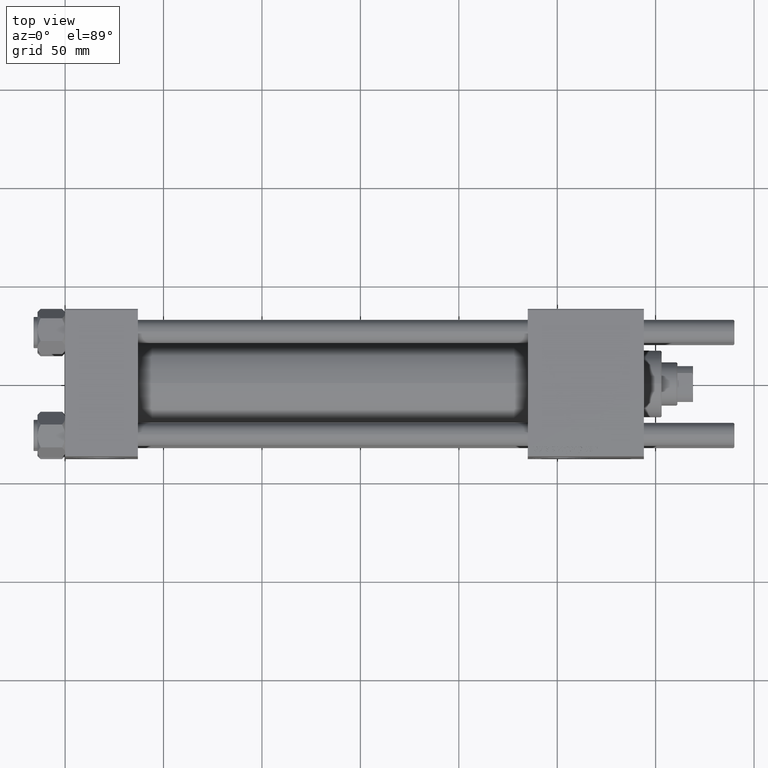
[diagram: clean part render]
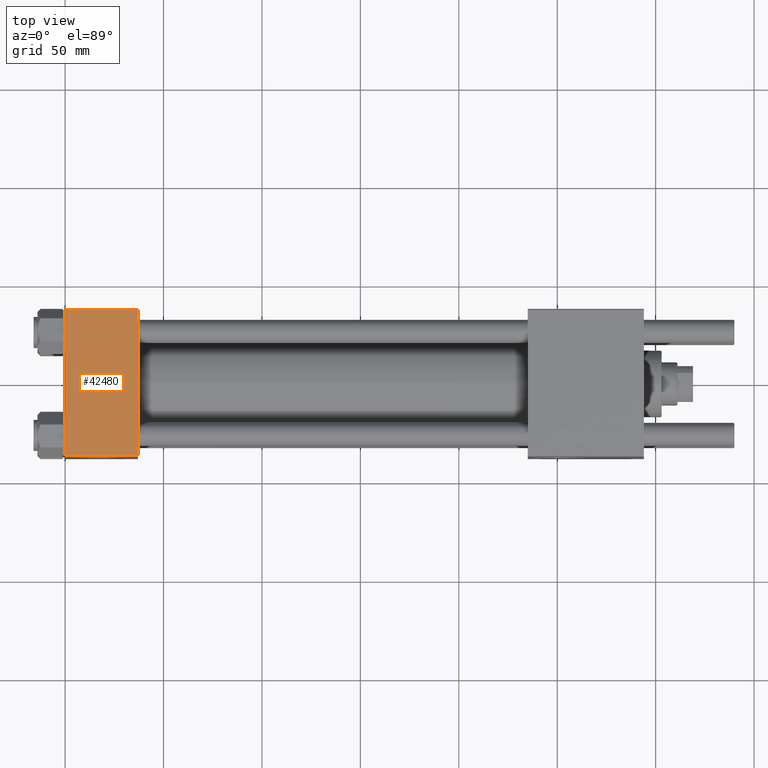
[diagram: same view with one face highlighted and labeled with its STEP entity id]
A machine part, top view. The second image highlights one B-rep face of the part: STEP entity #42480.
In plain terms, the highlighted planar face has unit normal (0, 0, -1).
Its self-contained STEP definition (entity closure, byte-faithful):
#637 = ORIENTED_EDGE ( 'NONE', *, *, #34769, .F. ) ;
#1642 = CARTESIAN_POINT ( 'NONE',  ( 0.000000000000000000, 37.49999999999999289, 37.50000000000000000 ) ) ;
#3427 = VECTOR ( 'NONE', #45007, 1000.000000000000000 ) ;
#3889 = PLANE ( 'NONE',  #54912 ) ;
#4248 = VECTOR ( 'NONE', #6762, 1000.000000000000000 ) ;
#5935 = DIRECTION ( 'NONE',  ( 0.000000000000000000, -1.000000000000000000, -9.251858538542971581E-17 ) ) ;
#6762 = DIRECTION ( 'NONE',  ( 0.000000000000000000, -1.000000000000000000, -9.251858538542971581E-17 ) ) ;
#7287 = VERTEX_POINT ( 'NONE', #48064 ) ;
#7760 = VERTEX_POINT ( 'NONE', #52543 ) ;
#11102 = LINE ( 'NONE', #1642, #17111 ) ;
#12179 = VERTEX_POINT ( 'NONE', #51147 ) ;
#12301 = VERTEX_POINT ( 'NONE', #23485 ) ;
#14294 = CARTESIAN_POINT ( 'NONE',  ( 0.000000000000000000, 36.99999999999999289, 37.50000000000000000 ) ) ;
#15146 = ORIENTED_EDGE ( 'NONE', *, *, #33833, .T. ) ;
#15180 = LINE ( 'NONE', #20336, #31760 ) ;
#17111 = VECTOR ( 'NONE', #5935, 1000.000000000000000 ) ;
#18938 = ORIENTED_EDGE ( 'NONE', *, *, #36655, .T. ) ;
#19485 = DIRECTION ( 'NONE',  ( 1.000000000000000000, 0.000000000000000000, 0.000000000000000000 ) ) ;
#20336 = CARTESIAN_POINT ( 'NONE',  ( 37.00000000000000000, -37.00000000000000711, 37.49999999999999289 ) ) ;
#23485 = CARTESIAN_POINT ( 'NONE',  ( 0.000000000000000000, 36.99999999999999289, 37.50000000000000000 ) ) ;
#25967 = CARTESIAN_POINT ( 'NONE',  ( 37.00000000000000000, 37.49999999999999289, 37.50000000000000000 ) ) ;
#26532 = DIRECTION ( 'NONE',  ( 0.000000000000000000, 9.251858538542971581E-17, -1.000000000000000000 ) ) ;
#28849 = CARTESIAN_POINT ( 'NONE',  ( 37.00000000000000000, 37.49999999999999289, 37.50000000000000000 ) ) ;
#30112 = ORIENTED_EDGE ( 'NONE', *, *, #36928, .T. ) ;
#31760 = VECTOR ( 'NONE', #19485, 1000.000000000000000 ) ;
#33833 = EDGE_CURVE ( 'NONE', #7287, #12301, #53373, .T. ) ;
#34769 = EDGE_CURVE ( 'NONE', #7287, #12179, #50997, .T. ) ;
#36655 = EDGE_CURVE ( 'NONE', #7760, #12179, #15180, .T. ) ;
#36928 = EDGE_CURVE ( 'NONE', #12301, #7760, #11102, .T. ) ;
#42480 = ADVANCED_FACE ( 'NONE', ( #43223 ), #3889, .F. ) ;
#43223 = FACE_OUTER_BOUND ( 'NONE', #45026, .T. ) ;
#43788 = DIRECTION ( 'NONE',  ( 0.000000000000000000, 1.000000000000000000, 9.251858538542971581E-17 ) ) ;
#45007 = DIRECTION ( 'NONE',  ( -1.000000000000000000, 0.000000000000000000, 0.000000000000000000 ) ) ;
#45026 = EDGE_LOOP ( 'NONE', ( #30112, #18938, #637, #15146 ) ) ;
#48064 = CARTESIAN_POINT ( 'NONE',  ( 37.00000000000000000, 36.99999999999999289, 37.50000000000000000 ) ) ;
#50997 = LINE ( 'NONE', #28849, #4248 ) ;
#51147 = CARTESIAN_POINT ( 'NONE',  ( 37.00000000000000000, -37.00000000000000711, 37.49999999999999289 ) ) ;
#52543 = CARTESIAN_POINT ( 'NONE',  ( 0.000000000000000000, -37.00000000000000711, 37.49999999999999289 ) ) ;
#53373 = LINE ( 'NONE', #14294, #3427 ) ;
#54912 = AXIS2_PLACEMENT_3D ( 'NONE', #25967, #26532, #43788 ) ;